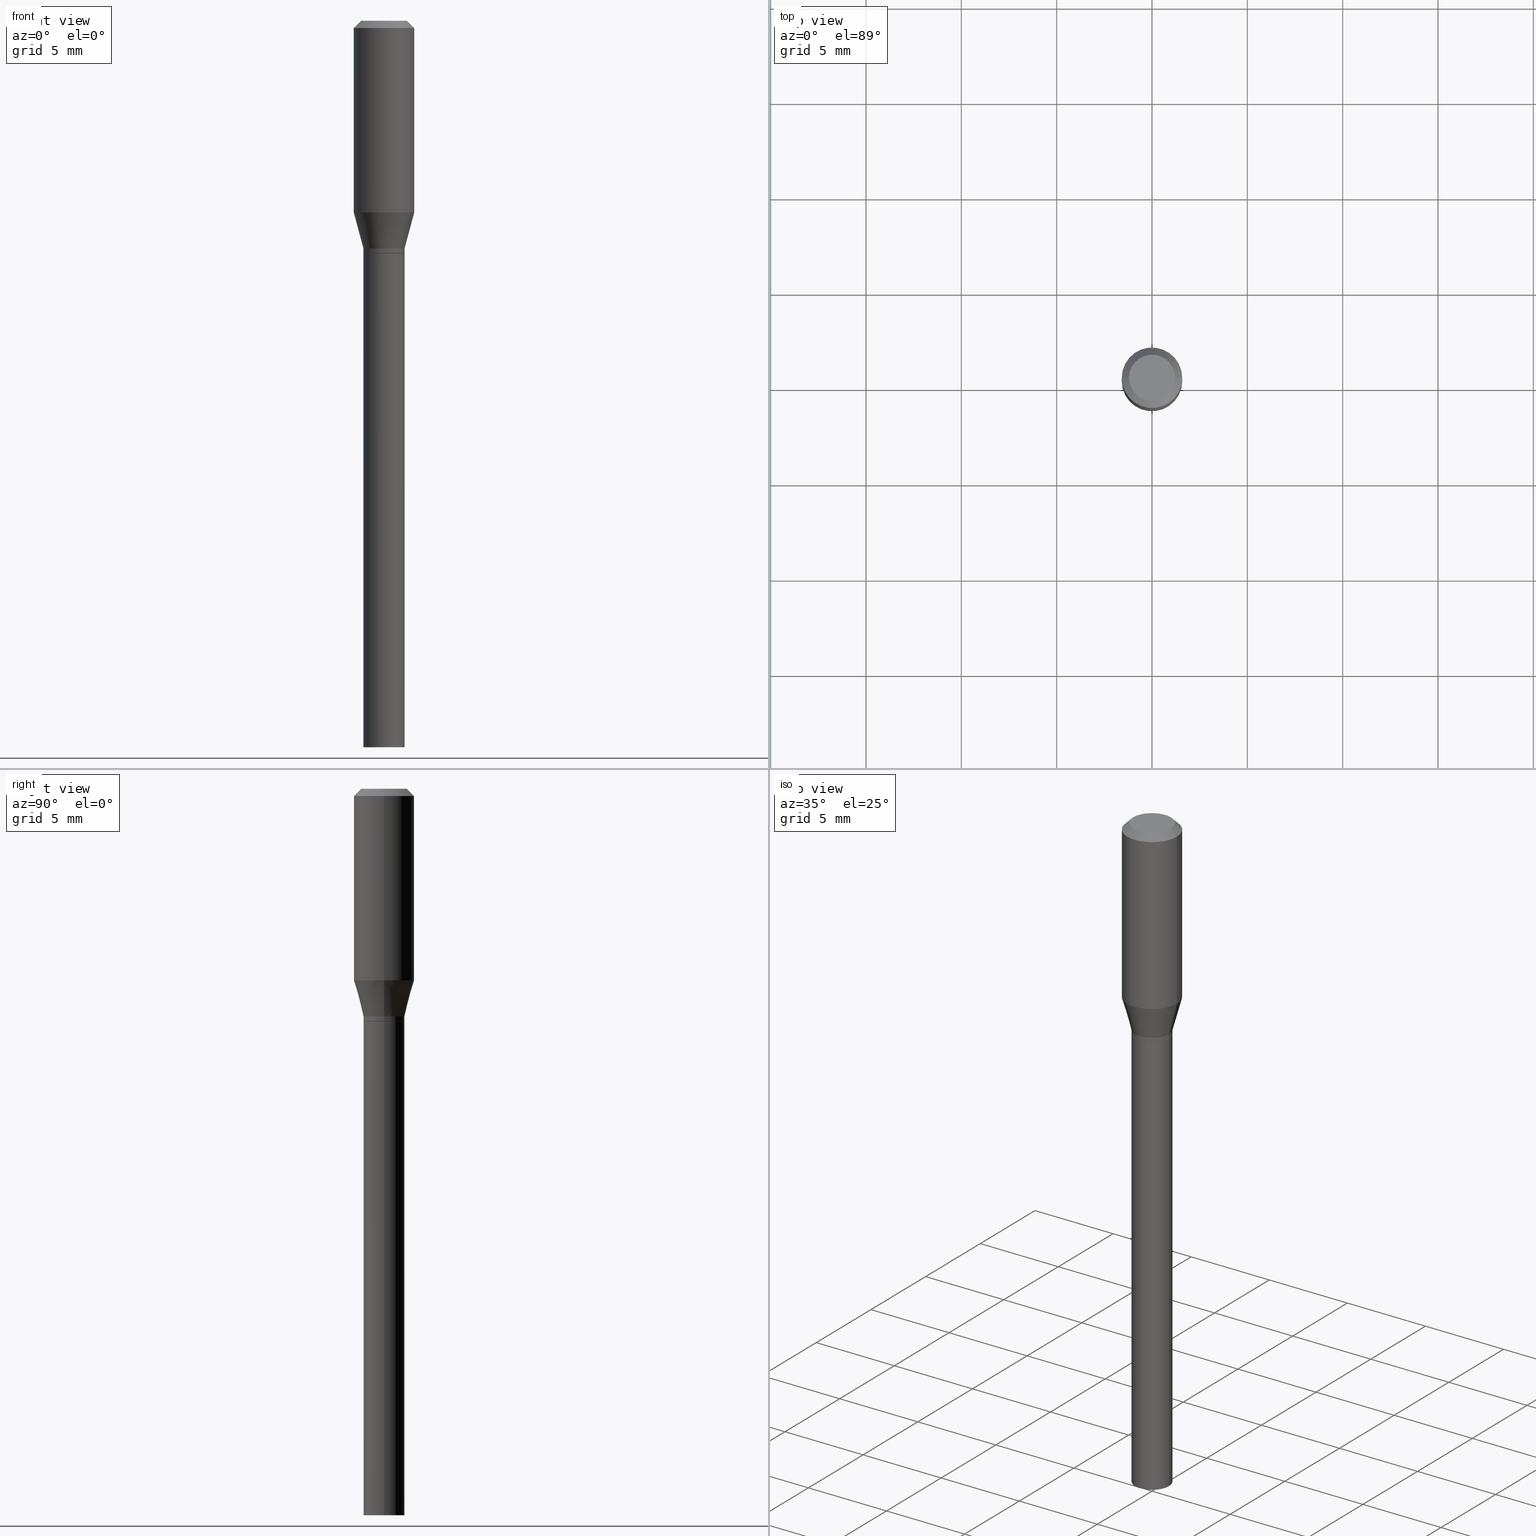
[diagram: canonical four-view strip — front | top / right | iso, engineering-drawing reading convention]
A machine part, canonical four-view strip (front | top / right | iso — engineering-drawing reading convention). The complete STEP part file that produces these views, byte-faithful:
ISO-10303-21;
HEADER;
FILE_DESCRIPTION (( 'STEP AP203' ),
    '1' );
FILE_NAME ('04257.STEP',
    '2024-03-14T17:33:07',
    ( '' ),
    ( '' ),
    'SwSTEP 2.0',
    'SolidWorks 2023',
    '' );
FILE_SCHEMA (( 'CONFIG_CONTROL_DESIGN' ));
ENDSEC;

DATA;
#1 = CARTESIAN_POINT ( 'NONE',  ( 0.000000000000000000, 0.000000000000000000, 0.000000000000000000 ) ) ;
#2 = LINE ( 'NONE', #190, #276 ) ;
#3 = CIRCLE ( 'NONE', #255, 0.04249999999999994060 ) ;
#4 = CIRCLE ( 'NONE', #32, 0.06250000000000000000 ) ;
#5 = DIRECTION ( 'NONE',  ( -2.445468806185136597E-29, 3.491481338843145583E-15, 1.000000000000000000 ) ) ;
#6 = EDGE_CURVE ( 'NONE', #379, #358, #69, .T. ) ;
#7 = UNCERTAINTY_MEASURE_WITH_UNIT (LENGTH_MEASURE( 1.000000000000000082E-05 ), #166, 'distance_accuracy_value', 'NONE');
#8 = CARTESIAN_POINT ( 'NONE',  ( 1.173825026968865768E-29, -1.675911042644710085E-15, -0.4800000000000000933 ) ) ;
#9 = DIRECTION ( 'NONE',  ( -2.445468806185136597E-29, 3.491481338843145583E-15, 1.000000000000000000 ) ) ;
#10 = CC_DESIGN_PERSON_AND_ORGANIZATION_ASSIGNMENT ( #291, #111, ( #148 ) ) ;
#11 = ORIENTED_EDGE ( 'NONE', *, *, #246, .F. ) ;
#12 = DIRECTION ( 'NONE',  ( -2.445468806185136597E-29, 3.491481338843145583E-15, 1.000000000000000000 ) ) ;
#13 = AXIS2_PLACEMENT_3D ( 'NONE', #243, #211, #423 ) ;
#14 = CARTESIAN_POINT ( 'NONE',  ( 3.576687321579069994E-29, -5.368277968210015545E-15, -1.500000000000000222 ) ) ;
#15 = DIRECTION ( 'NONE',  ( -2.445468806185136597E-29, 3.491481338843145583E-15, 1.000000000000000000 ) ) ;
#16 =( LENGTH_UNIT ( ) NAMED_UNIT ( * ) SI_UNIT ( $, .METRE. ) );
#17 = EDGE_CURVE ( 'NONE', #189, #72, #3, .T. ) ;
#18 = EDGE_LOOP ( 'NONE', ( #338, #293, #241, #162 ) ) ;
#19 = LENGTH_MEASURE_WITH_UNIT ( LENGTH_MEASURE( 0.02539999999999999897 ), #16 );
#20 = VECTOR ( 'NONE', #91, 39.37007874015748143 ) ;
#21 = CC_DESIGN_PERSON_AND_ORGANIZATION_ASSIGNMENT ( #102, #217, ( #121 ) ) ;
#22 = VERTEX_POINT ( 'NONE', #248 ) ;
#23 = LOCAL_TIME ( 13, 33, 6.000000000000000000, #68 ) ;
#24 = ADVANCED_FACE ( 'NONE', ( #66 ), #54, .T. ) ;
#25 =( NAMED_UNIT ( * ) PLANE_ANGLE_UNIT ( ) SI_UNIT ( $, .RADIAN. ) );
#26 = ORIENTED_EDGE ( 'NONE', *, *, #180, .F. ) ;
#27 = EDGE_CURVE ( 'NONE', #313, #452, #184, .T. ) ;
#28 = APPROVAL_ROLE ( '' ) ;
#29 = EDGE_LOOP ( 'NONE', ( #104, #218, #384, #64 ) ) ;
#30 = ORIENTED_EDGE ( 'NONE', *, *, #377, .F. ) ;
#31 = AXIS2_PLACEMENT_3D ( 'NONE', #438, #79, #265 ) ;
#32 = AXIS2_PLACEMENT_3D ( 'NONE', #444, #353, #175 ) ;
#33 = DIRECTION ( 'NONE',  ( 1.000000000000000000, -6.982962677686269866E-15, 0.000000000000000000 ) ) ;
#34 = ORIENTED_EDGE ( 'NONE', *, *, #145, .F. ) ;
#35 = CIRCLE ( 'NONE', #31, 0.04249999999999999611 ) ;
#36 = DIRECTION ( 'NONE',  ( 2.438088387897960049E-29, -3.491481338843145188E-15, -1.000000000000000000 ) ) ;
#37 = VERTEX_POINT ( 'NONE', #333 ) ;
#38 = DIRECTION ( 'NONE',  ( 1.000000000000000000, -6.982962677686265922E-15, 4.876176775795935793E-29 ) ) ;
#39 = FACE_OUTER_BOUND ( 'NONE', #324, .T. ) ;
#40 = ORIENTED_EDGE ( 'NONE', *, *, #229, .T. ) ;
#41 = CIRCLE ( 'NONE', #349, 0.04250000000000005856 ) ;
#42 = FACE_OUTER_BOUND ( 'NONE', #193, .T. ) ;
#43 = AXIS2_PLACEMENT_3D ( 'NONE', #140, #215, #108 ) ;
#44 = ADVANCED_FACE ( 'NONE', ( #305 ), #114, .T. ) ;
#45 = VECTOR ( 'NONE', #198, 39.37007874015748143 ) ;
#46 = CARTESIAN_POINT ( 'NONE',  ( 0.000000000000000000, 0.000000000000000000, 0.000000000000000000 ) ) ;
#47 = DIRECTION ( 'NONE',  ( 1.000000000000000000, -6.982962677686267499E-15, 4.876176775795935793E-29 ) ) ;
#48 = APPROVAL ( #247, 'UNSPECIFIED' ) ;
#49 = DIRECTION ( 'NONE',  ( -2.445468806185136597E-29, 3.491481338843145583E-15, 1.000000000000000000 ) ) ;
#50 = ORIENTED_EDGE ( 'NONE', *, *, #272, .F. ) ;
#51 = CARTESIAN_POINT ( 'NONE',  ( -0.04249999999999994060, -1.137657435479813503E-15, -0.4700000000000000289 ) ) ;
#52 = DIRECTION ( 'NONE',  ( 1.000000000000000000, -6.982962677686269077E-15, 0.000000000000000000 ) ) ;
#53 = CLOSED_SHELL ( 'NONE', ( #314, #24, #84, #261, #105, #96, #297, #328, #356, #187, #44, #181 ) ) ;
#54 = CONICAL_SURFACE ( 'NONE', #359, 0.04199999999999999567, 0.7853981633976103716 ) ;
#55 = FACE_OUTER_BOUND ( 'NONE', #253, .T. ) ;
#56 = CARTESIAN_POINT ( 'NONE',  ( -0.04249999999999999611, 3.019806626980425514E-16, -2.090547413358334859E-30 ) ) ;
#57 = EDGE_LOOP ( 'NONE', ( #34, #352, #173, #101 ) ) ;
#58 = LINE ( 'NONE', #56, #127 ) ;
#59 = EDGE_LOOP ( 'NONE', ( #138, #332, #275, #50 ) ) ;
#60 = LOCAL_TIME ( 13, 33, 6.000000000000000000, #139 ) ;
#61 = AXIS2_PLACEMENT_3D ( 'NONE', #159, #375, #52 ) ;
#62 = VERTEX_POINT ( 'NONE', #258 ) ;
#63 = VECTOR ( 'NONE', #116, 39.37007874015748143 ) ;
#64 = ORIENTED_EDGE ( 'NONE', *, *, #289, .F. ) ;
#65 = DIRECTION ( 'NONE',  ( 1.000000000000000000, -6.982962677686269866E-15, 0.000000000000000000 ) ) ;
#66 = FACE_OUTER_BOUND ( 'NONE', #381, .T. ) ;
#67 = ADVANCED_BREP_SHAPE_REPRESENTATION ( '04257', ( #286, #124, #292 ), #266 ) ;
#68 = COORDINATED_UNIVERSAL_TIME_OFFSET ( 5, 0, .BEHIND. ) ;
#69 = LINE ( 'NONE', #137, #150 ) ;
#70 = CC_DESIGN_APPROVAL ( #186, ( #121 ) ) ;
#71 = EDGE_CURVE ( 'NONE', #358, #177, #136, .T. ) ;
#72 = VERTEX_POINT ( 'NONE', #329 ) ;
#73 = PERSON_AND_ORGANIZATION ( #278, #465 ) ;
#74 = ADVANCED_FACE ( 'NONE', ( #301 ), #372, .T. ) ;
#75 = EDGE_CURVE ( 'NONE', #189, #316, #2, .T. ) ;
#76 = CLOSED_SHELL ( 'NONE', ( #74, #415, #325, #317 ) ) ;
#77 = DIRECTION ( 'NONE',  ( 1.000000000000000000, -6.982962677686265922E-15, 0.000000000000000000 ) ) ;
#78 = ORIENTED_EDGE ( 'NONE', *, *, #246, .T. ) ;
#79 = DIRECTION ( 'NONE',  ( -2.445468806185136597E-29, 3.491481338843145583E-15, 1.000000000000000000 ) ) ;
#80 = DIRECTION ( 'NONE',  ( 1.000000000000000000, -6.982962677686269866E-15, 0.000000000000000000 ) ) ;
#81 = CARTESIAN_POINT ( 'NONE',  ( 1.172602292565773247E-29, -1.674165301975288581E-15, -0.4795000000000000928 ) ) ;
#82 = AXIS2_PLACEMENT_3D ( 'NONE', #14, #161, #270 ) ;
#83 = FACE_OUTER_BOUND ( 'NONE', #95, .T. ) ;
#84 = ADVANCED_FACE ( 'NONE', ( #233 ), #369, .T. ) ;
#85 = VECTOR ( 'NONE', #256, 39.37007874015748143 ) ;
#86 = EDGE_CURVE ( 'NONE', #316, #260, #236, .T. ) ;
#87 = CONICAL_SURFACE ( 'NONE', #290, 0.06250000000000000000, 0.7853981633974450594 ) ;
#88 = CARTESIAN_POINT ( 'NONE',  ( 3.668203209277705088E-31, -5.237222008264718399E-17, -0.01499999999999999944 ) ) ;
#89 = CARTESIAN_POINT ( 'NONE',  ( 9.668380622468593325E-30, -1.380388514251453836E-15, -0.3953589838486224473 ) ) ;
#90 = DIRECTION ( 'NONE',  ( 1.000000000000000000, -6.982962677686269077E-15, 0.000000000000000000 ) ) ;
#91 = DIRECTION ( 'NONE',  ( 0.7071067811866621478, -2.468850131083457312E-15, 0.7071067811864328867 ) ) ;
#92 = FACE_OUTER_BOUND ( 'NONE', #210, .T. ) ;
#93 = LINE ( 'NONE', #235, #408 ) ;
#94 = PLANE ( 'NONE',  #82 ) ;
#95 = EDGE_LOOP ( 'NONE', ( #395, #288 ) ) ;
#96 = ADVANCED_FACE ( 'NONE', ( #339 ), #304, .T. ) ;
#97 = DIRECTION ( 'NONE',  ( -2.445468806185136597E-29, 3.491481338843145583E-15, 1.000000000000000000 ) ) ;
#98 = EDGE_CURVE ( 'NONE', #452, #62, #296, .T. ) ;
#99 = DIRECTION ( 'NONE',  ( 0.000000000000000000, 0.000000000000000000, 1.000000000000000000 ) ) ;
#100 = CIRCLE ( 'NONE', #363, 0.04199999999999999567 ) ;
#101 = ORIENTED_EDGE ( 'NONE', *, *, #152, .F. ) ;
#102 = PERSON_AND_ORGANIZATION ( #278, #465 ) ;
#103 = EDGE_LOOP ( 'NONE', ( #458, #155, #117, #429 ) ) ;
#104 = ORIENTED_EDGE ( 'NONE', *, *, #311, .T. ) ;
#105 = ADVANCED_FACE ( 'NONE', ( #42 ), #295, .T. ) ;
#106 = LOCAL_TIME ( 13, 33, 6.000000000000000000, #319 ) ;
#107 = PERSON_AND_ORGANIZATION ( #278, #465 ) ;
#108 = DIRECTION ( 'NONE',  ( 1.000000000000000000, -6.982962677686267499E-15, 4.884662768193073002E-29 ) ) ;
#109 = AXIS2_PLACEMENT_3D ( 'NONE', #413, #442, #80 ) ;
#110 = AXIS2_PLACEMENT_3D ( 'NONE', #434, #257, #192 ) ;
#111 = PERSON_AND_ORGANIZATION_ROLE ( 'creator' ) ;
#112 = LINE ( 'NONE', #113, #63 ) ;
#113 = CARTESIAN_POINT ( 'NONE',  ( 0.04249999999999999611, -2.967759138016663549E-16, 2.072375129713272502E-30 ) ) ;
#114 = CONICAL_SURFACE ( 'NONE', #109, 0.04199999999999999567, 0.7853981633976103716 ) ;
#115 = LINE ( 'NONE', #440, #85 ) ;
#116 = DIRECTION ( 'NONE',  ( -2.445468806185136877E-29, 3.491481338843145188E-15, 1.000000000000000000 ) ) ;
#117 = ORIENTED_EDGE ( 'NONE', *, *, #152, .T. ) ;
#118 = CARTESIAN_POINT ( 'NONE',  ( 0.000000000000000000, 0.000000000000000000, 0.000000000000000000 ) ) ;
#119 = CYLINDRICAL_SURFACE ( 'NONE', #464, 0.04249999999999999611 ) ;
#120 = DIRECTION ( 'NONE',  ( -1.000000000000000000, 6.982962677686265922E-15, -4.876176775795935793E-29 ) ) ;
#121 = SECURITY_CLASSIFICATION ( '', '', #433 ) ;
#122 = CARTESIAN_POINT ( 'NONE',  ( 0.04249999999999999611, -1.972686956446376341E-15, -0.4800000000000000933 ) ) ;
#123 = DIRECTION ( 'NONE',  ( 1.000000000000000000, -6.982962677686265133E-15, 0.000000000000000000 ) ) ;
#124 = MANIFOLD_SOLID_BREP ( 'Body-Move/Copy2[2]', #53 ) ;
#125 = DIRECTION ( 'NONE',  ( 1.000000000000000000, -6.982962677686265922E-15, 0.000000000000000000 ) ) ;
#126 = ORIENTED_EDGE ( 'NONE', *, *, #311, .F. ) ;
#127 = VECTOR ( 'NONE', #234, 39.37007874015748143 ) ;
#128 = EDGE_CURVE ( 'NONE', #72, #189, #250, .T. ) ;
#129 = AXIS2_PLACEMENT_3D ( 'NONE', #232, #373, #38 ) ;
#130 = AXIS2_PLACEMENT_3D ( 'NONE', #416, #306, #343 ) ;
#131 = CARTESIAN_POINT ( 'NONE',  ( -0.04249999999999999611, -3.154585862756671481E-15, -0.4800000000000000933 ) ) ;
#132 = ORIENTED_EDGE ( 'NONE', *, *, #71, .F. ) ;
#133 = CARTESIAN_POINT ( 'NONE',  ( 1.173825026968865628E-29, -1.675911042644709888E-15, -0.4799999999999999822 ) ) ;
#134 = MECHANICAL_CONTEXT ( 'NONE', #154, 'mechanical' ) ;
#135 = PERSON_AND_ORGANIZATION ( #278, #465 ) ;
#136 = CIRCLE ( 'NONE', #264, 0.04249999999999999611 ) ;
#137 = CARTESIAN_POINT ( 'NONE',  ( -0.04249999999999999611, 3.019806626980425514E-16, -2.090547413358334859E-30 ) ) ;
#138 = ORIENTED_EDGE ( 'NONE', *, *, #422, .T. ) ;
#139 = COORDINATED_UNIVERSAL_TIME_OFFSET ( 5, 0, .BEHIND. ) ;
#140 = CARTESIAN_POINT ( 'NONE',  ( -2.427605901612193195E-45, 3.465977845273231710E-31, 9.926955091278351202E-17 ) ) ;
#141 = AXIS2_PLACEMENT_3D ( 'NONE', #46, #49, #337 ) ;
#142 = CALENDAR_DATE ( 2024, 14, 3 ) ;
#143 = ORIENTED_EDGE ( 'NONE', *, *, #449, .T. ) ;
#144 = AXIS2_PLACEMENT_3D ( 'NONE', #133, #97, #344 ) ;
#145 = EDGE_CURVE ( 'NONE', #452, #313, #170, .T. ) ;
#146 = AXIS2_PLACEMENT_3D ( 'NONE', #312, #237, #380 ) ;
#147 = PERSON_AND_ORGANIZATION ( #278, #465 ) ;
#148 = PRODUCT_DEFINITION ( 'UNKNOWN', '', #231, #199 ) ;
#149 = CARTESIAN_POINT ( 'NONE',  ( 3.316907271900976096E-16, 0.04749999999999999362, -1.162105881386576343E-16 ) ) ;
#150 = VECTOR ( 'NONE', #360, 39.37007874015748143 ) ;
#151 = DIRECTION ( 'NONE',  ( -2.445468806185136597E-29, 3.491481338843145583E-15, 1.000000000000000000 ) ) ;
#152 = EDGE_CURVE ( 'NONE', #313, #462, #115, .T. ) ;
#153 = DIRECTION ( 'NONE',  ( 1.000000000000000000, -6.982962677686267499E-15, 4.884662768193073002E-29 ) ) ;
#154 = APPLICATION_CONTEXT ( 'configuration controlled 3d designs of mechanical parts and assemblies' ) ;
#155 = ORIENTED_EDGE ( 'NONE', *, *, #27, .F. ) ;
#156 = CARTESIAN_POINT ( 'NONE',  ( 0.06250000000000000000, -4.811533449433679005E-16, -0.01499999999999999944 ) ) ;
#157 = DIRECTION ( 'NONE',  ( 0.2588190451025212391, 1.565188264969622362E-15, 0.9659258262890679791 ) ) ;
#158 = EDGE_LOOP ( 'NONE', ( #345, #320, #78, #223 ) ) ;
#159 = CARTESIAN_POINT ( 'NONE',  ( 1.149370338907014223E-29, -1.640996229256278436E-15, -0.4700000000000000289 ) ) ;
#160 = AXIS2_PLACEMENT_3D ( 'NONE', #268, #336, #90 ) ;
#161 = DIRECTION ( 'NONE',  ( -2.438088387897960049E-29, 3.491481338843145188E-15, 1.000000000000000000 ) ) ;
#162 = ORIENTED_EDGE ( 'NONE', *, *, #86, .F. ) ;
#163 = DIRECTION ( 'NONE',  ( 0.7071067811865452413, -7.319954787623248157E-15, -0.7071067811865497932 ) ) ;
#164 = DIRECTION ( 'NONE',  ( -1.000000000000000000, 6.982962677686265922E-15, -4.876176775795935793E-29 ) ) ;
#165 = ORIENTED_EDGE ( 'NONE', *, *, #180, .T. ) ;
#166 =( CONVERSION_BASED_UNIT ( 'INCH', #19 ) LENGTH_UNIT ( ) NAMED_UNIT ( #330 ) );
#167 = VERTEX_POINT ( 'NONE', #401 ) ;
#168 = APPROVAL_PERSON_ORGANIZATION ( #147, #48, #459 ) ;
#169 = PRODUCT ( '04257', '04257', '', ( #134 ) ) ;
#170 = CIRCLE ( 'NONE', #432, 0.04749999999999999362 ) ;
#171 = CIRCLE ( 'NONE', #191, 0.04249999999999999611 ) ;
#172 = CARTESIAN_POINT ( 'NONE',  ( 3.668203209277704895E-29, -5.237222008264718177E-15, -1.500000000000000222 ) ) ;
#173 = ORIENTED_EDGE ( 'NONE', *, *, #447, .T. ) ;
#174 = CARTESIAN_POINT ( 'NONE',  ( 0.000000000000000000, 0.000000000000000000, 0.000000000000000000 ) ) ;
#175 = DIRECTION ( 'NONE',  ( 1.000000000000000000, -6.982962677686266711E-15, 0.000000000000000000 ) ) ;
#176 = DATE_AND_TIME ( #461, #106 ) ;
#177 = VERTEX_POINT ( 'NONE', #122 ) ;
#178 = DATE_AND_TIME ( #142, #310 ) ;
#179 = ORIENTED_EDGE ( 'NONE', *, *, #75, .T. ) ;
#180 = EDGE_CURVE ( 'NONE', #379, #167, #35, .T. ) ;
#181 = ADVANCED_FACE ( 'NONE', ( #410 ), #119, .T. ) ;
#182 = CALENDAR_DATE ( 2024, 14, 3 ) ;
#183 = VERTEX_POINT ( 'NONE', #406 ) ;
#184 = CIRCLE ( 'NONE', #43, 0.04749999999999999362 ) ;
#185 = CARTESIAN_POINT ( 'NONE',  ( -0.04749999999999999362, 3.578768372314212971E-16, 9.926955091278110846E-17 ) ) ;
#186 = APPROVAL ( #209, 'UNSPECIFIED' ) ;
#187 = ADVANCED_FACE ( 'NONE', ( #83 ), #230, .F. ) ;
#188 = CARTESIAN_POINT ( 'NONE',  ( 1.173825026968865628E-29, -1.675911042644709888E-15, -0.4799999999999999822 ) ) ;
#189 = VERTEX_POINT ( 'NONE', #51 ) ;
#190 = CARTESIAN_POINT ( 'NONE',  ( -0.04249999999999994060, -1.339015566558236180E-15, -0.4700000000000000289 ) ) ;
#191 = AXIS2_PLACEMENT_3D ( 'NONE', #172, #376, #279 ) ;
#192 = DIRECTION ( 'NONE',  ( 1.000000000000000000, -6.982962677686266711E-15, 4.876176775795935793E-29 ) ) ;
#193 = EDGE_LOOP ( 'NONE', ( #420, #179, #207, #456 ) ) ;
#194 = CARTESIAN_POINT ( 'NONE',  ( 3.668203209277705088E-31, -5.237222008264718399E-17, -0.01499999999999999944 ) ) ;
#195 = FACE_OUTER_BOUND ( 'NONE', #103, .T. ) ;
#196 = VERTEX_POINT ( 'NONE', #197 ) ;
#197 = CARTESIAN_POINT ( 'NONE',  ( -0.04199999999999999567, -1.374833866451356541E-15, -0.4799999999999999822 ) ) ;
#198 = DIRECTION ( 'NONE',  ( -2.445468806185136877E-29, 3.491481338843145188E-15, 1.000000000000000000 ) ) ;
#199 = DESIGN_CONTEXT ( 'detailed design', #216, 'design' ) ;
#200 = DIRECTION ( 'NONE',  ( 1.000000000000000000, -6.982962677686269077E-15, 0.000000000000000000 ) ) ;
#201 = AXIS2_PLACEMENT_3D ( 'NONE', #89, #5, #403 ) ;
#202 = ORIENTED_EDGE ( 'NONE', *, *, #289, .T. ) ;
#203 = DIRECTION ( 'NONE',  ( -2.445468806185136597E-29, 3.491481338843145583E-15, 1.000000000000000000 ) ) ;
#204 = ORIENTED_EDGE ( 'NONE', *, *, #27, .T. ) ;
#205 = EDGE_LOOP ( 'NONE', ( #388, #40, #362, #238 ) ) ;
#206 = AXIS2_PLACEMENT_3D ( 'NONE', #149, #36, #164 ) ;
#207 = ORIENTED_EDGE ( 'NONE', *, *, #396, .F. ) ;
#208 = DIRECTION ( 'NONE',  ( -2.445468806185136877E-29, 3.491481338843145188E-15, 1.000000000000000000 ) ) ;
#209 = APPROVAL_STATUS ( 'not_yet_approved' ) ;
#210 = EDGE_LOOP ( 'NONE', ( #364, #26 ) ) ;
#211 = DIRECTION ( 'NONE',  ( -2.445468806185136597E-29, 3.491481338843145583E-15, 1.000000000000000000 ) ) ;
#212 = CARTESIAN_POINT ( 'NONE',  ( 1.173825026968865628E-29, -1.675911042644709888E-15, -0.4799999999999999822 ) ) ;
#213 = COORDINATED_UNIVERSAL_TIME_OFFSET ( 5, 0, .BEHIND. ) ;
#214 = VECTOR ( 'NONE', #443, 39.37007874015748143 ) ;
#215 = DIRECTION ( 'NONE',  ( -2.445468806185136597E-29, 3.491481338843145583E-15, 1.000000000000000000 ) ) ;
#216 = APPLICATION_CONTEXT ( 'configuration controlled 3d designs of mechanical parts and assemblies' ) ;
#217 = PERSON_AND_ORGANIZATION_ROLE ( 'classification_officer' ) ;
#218 = ORIENTED_EDGE ( 'NONE', *, *, #454, .T. ) ;
#219 = APPROVAL_DATE_TIME ( #428, #220 ) ;
#220 = APPROVAL ( #457, 'UNSPECIFIED' ) ;
#221 = VECTOR ( 'NONE', #208, 39.37007874015748143 ) ;
#222 = FACE_OUTER_BOUND ( 'NONE', #348, .T. ) ;
#223 = ORIENTED_EDGE ( 'NONE', *, *, #273, .F. ) ;
#224 = CARTESIAN_POINT ( 'NONE',  ( 0.000000000000000000, 0.000000000000000000, 0.000000000000000000 ) ) ;
#225 = FACE_OUTER_BOUND ( 'NONE', #29, .T. ) ;
#226 = DIRECTION ( 'NONE',  ( -0.2588190451025212391, 5.211531920934549464E-15, 0.9659258262890679791 ) ) ;
#227 = PRODUCT_RELATED_PRODUCT_CATEGORY ( 'detail', '', ( #169 ) ) ;
#228 = LINE ( 'NONE', #412, #431 ) ;
#229 = EDGE_CURVE ( 'NONE', #196, #183, #100, .T. ) ;
#230 = PLANE ( 'NONE',  #129 ) ;
#231 = PRODUCT_DEFINITION_FORMATION_WITH_SPECIFIED_SOURCE ( 'ANY', '', #169, .NOT_KNOWN. ) ;
#232 = CARTESIAN_POINT ( 'NONE',  ( 1.173825026968865768E-29, -1.675911042644710085E-15, -0.4800000000000000933 ) ) ;
#233 = FACE_OUTER_BOUND ( 'NONE', #57, .T. ) ;
#234 = DIRECTION ( 'NONE',  ( -2.445468806185136877E-29, 3.491481338843145188E-15, 1.000000000000000000 ) ) ;
#235 = CARTESIAN_POINT ( 'NONE',  ( 0.06250000000000000000, -4.364351673553916694E-16, 3.047610484872459871E-30 ) ) ;
#236 = CIRCLE ( 'NONE', #201, 0.06250000000000000000 ) ;
#237 = DIRECTION ( 'NONE',  ( -2.445468806185136597E-29, 3.491481338843145583E-15, 1.000000000000000000 ) ) ;
#238 = ORIENTED_EDGE ( 'NONE', *, *, #411, .F. ) ;
#239 = EDGE_CURVE ( 'NONE', #183, #196, #424, .T. ) ;
#240 = CARTESIAN_POINT ( 'NONE',  ( -0.06250000000000000000, 4.440892098500626162E-16, -3.074334431409316114E-30 ) ) ;
#241 = ORIENTED_EDGE ( 'NONE', *, *, #340, .T. ) ;
#242 = ORIENTED_EDGE ( 'NONE', *, *, #430, .T. ) ;
#243 = CARTESIAN_POINT ( 'NONE',  ( 0.000000000000000000, 0.000000000000000000, 0.000000000000000000 ) ) ;
#244 = SHAPE_DEFINITION_REPRESENTATION ( #269, #67 ) ;
#245 = DIRECTION ( 'NONE',  ( 1.000000000000000000, -6.982962677686269077E-15, 0.000000000000000000 ) ) ;
#246 = EDGE_CURVE ( 'NONE', #260, #62, #93, .T. ) ;
#247 = APPROVAL_STATUS ( 'not_yet_approved' ) ;
#248 = CARTESIAN_POINT ( 'NONE',  ( 0.04250000000000005856, -1.970941215776955626E-15, -0.4795000000000000928 ) ) ;
#249 = APPROVAL_PERSON_ORGANIZATION ( #135, #220, #321 ) ;
#250 = CIRCLE ( 'NONE', #160, 0.04249999999999994060 ) ;
#251 = CALENDAR_DATE ( 2024, 14, 3 ) ;
#252 = AXIS2_PLACEMENT_3D ( 'NONE', #1, #9, #259 ) ;
#253 = EDGE_LOOP ( 'NONE', ( #308, #242, #322, #11 ) ) ;
#254 = PERSON_AND_ORGANIZATION_ROLE ( 'design_owner' ) ;
#255 = AXIS2_PLACEMENT_3D ( 'NONE', #284, #426, #245 ) ;
#256 = DIRECTION ( 'NONE',  ( -0.7071067811865452413, 2.468850131082233000E-15, -0.7071067811865497932 ) ) ;
#257 = DIRECTION ( 'NONE',  ( -2.445468806185136597E-29, 3.491481338843145583E-15, 1.000000000000000000 ) ) ;
#258 = CARTESIAN_POINT ( 'NONE',  ( 0.06250000000000000000, -4.888073874380388472E-16, -0.01499999999999999944 ) ) ;
#259 = DIRECTION ( 'NONE',  ( 1.000000000000000000, -6.982962677686267499E-15, 4.876176775795935793E-29 ) ) ;
#260 = VERTEX_POINT ( 'NONE', #382 ) ;
#261 = ADVANCED_FACE ( 'NONE', ( #55 ), #446, .T. ) ;
#262 = DIRECTION ( 'NONE',  ( -2.445468806185136597E-29, 3.491481338843145583E-15, 1.000000000000000000 ) ) ;
#263 = DIRECTION ( 'NONE',  ( -1.000000000000000000, 6.982962677686266711E-15, 0.000000000000000000 ) ) ;
#264 = AXIS2_PLACEMENT_3D ( 'NONE', #8, #437, #123 ) ;
#265 = DIRECTION ( 'NONE',  ( 1.000000000000000000, -6.982962677686276177E-15, 0.000000000000000000 ) ) ;
#266 =( GEOMETRIC_REPRESENTATION_CONTEXT ( 3 ) GLOBAL_UNCERTAINTY_ASSIGNED_CONTEXT ( ( #7 ) ) GLOBAL_UNIT_ASSIGNED_CONTEXT ( ( #166, #25, #347 ) ) REPRESENTATION_CONTEXT ( 'NONE', 'WORKASPACE' ) );
#267 = CYLINDRICAL_SURFACE ( 'NONE', #252, 0.04249999999999999611 ) ;
#268 = CARTESIAN_POINT ( 'NONE',  ( 1.149370338907014223E-29, -1.640996229256278436E-15, -0.4700000000000000289 ) ) ;
#269 = PRODUCT_DEFINITION_SHAPE ( 'NONE', 'NONE',  #148 ) ;
#270 = DIRECTION ( 'NONE',  ( 1.000000000000000000, -6.982962677686265922E-15, 4.876176775795935793E-29 ) ) ;
#271 = ORIENTED_EDGE ( 'NONE', *, *, #272, .T. ) ;
#272 = EDGE_CURVE ( 'NONE', #167, #177, #386, .T. ) ;
#273 = EDGE_CURVE ( 'NONE', #462, #62, #4, .T. ) ;
#274 = LINE ( 'NONE', #414, #20 ) ;
#275 = ORIENTED_EDGE ( 'NONE', *, *, #449, .F. ) ;
#276 = VECTOR ( 'NONE', #226, 39.37007874015748854 ) ;
#277 = CARTESIAN_POINT ( 'NONE',  ( 1.172602292565773247E-29, -1.674165301975288581E-15, -0.4795000000000000928 ) ) ;
#278 = PERSON ( 'UNSPECIFIED', 'UNSPECIFIED', 'UNSPECIFIED', ('UNSPECIFIED'), ('UNSPECIFIED'), ('UNSPECIFIED') ) ;
#279 = DIRECTION ( 'NONE',  ( 1.000000000000000000, -6.982962677686276177E-15, 0.000000000000000000 ) ) ;
#280 = ORIENTED_EDGE ( 'NONE', *, *, #17, .F. ) ;
#281 = CARTESIAN_POINT ( 'NONE',  ( -0.06250000000000000000, -2.722911573169879398E-16, -0.01499999999999999944 ) ) ;
#282 = ORIENTED_EDGE ( 'NONE', *, *, #390, .T. ) ;
#283 = CALENDAR_DATE ( 2024, 14, 3 ) ;
#284 = CARTESIAN_POINT ( 'NONE',  ( 1.149370338907014223E-29, -1.640996229256278436E-15, -0.4700000000000000289 ) ) ;
#285 = ORIENTED_EDGE ( 'NONE', *, *, #411, .T. ) ;
#286 = MANIFOLD_SOLID_BREP ( 'Body-Move/Copy2[1]', #76 ) ;
#287 = PERSON_AND_ORGANIZATION ( #278, #465 ) ;
#288 = ORIENTED_EDGE ( 'NONE', *, *, #229, .F. ) ;
#289 = EDGE_CURVE ( 'NONE', #22, #72, #112, .T. ) ;
#290 = AXIS2_PLACEMENT_3D ( 'NONE', #88, #404, #263 ) ;
#291 = PERSON_AND_ORGANIZATION ( #278, #465 ) ;
#292 = AXIS2_PLACEMENT_3D ( 'NONE', #174, #99, #315 ) ;
#293 = ORIENTED_EDGE ( 'NONE', *, *, #17, .T. ) ;
#294 = PERSON_AND_ORGANIZATION_ROLE ( 'design_supplier' ) ;
#295 = CONICAL_SURFACE ( 'NONE', #331, 0.04249999999999994060, 0.2617993877991499629 ) ;
#296 = LINE ( 'NONE', #156, #417 ) ;
#297 = ADVANCED_FACE ( 'NONE', ( #374 ), #334, .T. ) ;
#298 = DIRECTION ( 'NONE',  ( 2.445468806185136597E-29, -3.491481338843145583E-15, -1.000000000000000000 ) ) ;
#299 = CARTESIAN_POINT ( 'NONE',  ( -0.06250000000000000000, -9.362993044013910222E-16, -0.3953589838486224473 ) ) ;
#300 = CC_DESIGN_PERSON_AND_ORGANIZATION_ASSIGNMENT ( #73, #254, ( #169 ) ) ;
#301 = FACE_OUTER_BOUND ( 'NONE', #59, .T. ) ;
#302 = PLANE ( 'NONE',  #206 ) ;
#303 = ORIENTED_EDGE ( 'NONE', *, *, #71, .T. ) ;
#304 = CONICAL_SURFACE ( 'NONE', #61, 0.04249999999999994060, 0.2617993877991499629 ) ;
#305 = FACE_OUTER_BOUND ( 'NONE', #205, .T. ) ;
#306 = DIRECTION ( 'NONE',  ( -2.445468806185136597E-29, 3.491481338843145583E-15, 1.000000000000000000 ) ) ;
#307 = CARTESIAN_POINT ( 'NONE',  ( 1.149370338907014223E-29, -1.640996229256278436E-15, -0.4700000000000000289 ) ) ;
#308 = ORIENTED_EDGE ( 'NONE', *, *, #396, .T. ) ;
#309 = CIRCLE ( 'NONE', #385, 0.04250000000000005856 ) ;
#310 = LOCAL_TIME ( 13, 33, 6.000000000000000000, #213 ) ;
#311 = EDGE_CURVE ( 'NONE', #22, #37, #41, .T. ) ;
#312 = CARTESIAN_POINT ( 'NONE',  ( 1.173825026968865768E-29, -1.675911042644710085E-15, -0.4800000000000000933 ) ) ;
#313 = VERTEX_POINT ( 'NONE', #185 ) ;
#314 = ADVANCED_FACE ( 'NONE', ( #225 ), #436, .T. ) ;
#315 = DIRECTION ( 'NONE',  ( 1.000000000000000000, 0.000000000000000000, 0.000000000000000000 ) ) ;
#316 = VERTEX_POINT ( 'NONE', #299 ) ;
#317 = ADVANCED_FACE ( 'NONE', ( #402 ), #439, .F. ) ;
#318 = APPROVAL_DATE_TIME ( #176, #186 ) ;
#319 = COORDINATED_UNIVERSAL_TIME_OFFSET ( 5, 0, .BEHIND. ) ;
#320 = ORIENTED_EDGE ( 'NONE', *, *, #86, .T. ) ;
#321 = APPROVAL_ROLE ( '' ) ;
#322 = ORIENTED_EDGE ( 'NONE', *, *, #447, .F. ) ;
#323 = DATE_AND_TIME ( #182, #350 ) ;
#324 = EDGE_LOOP ( 'NONE', ( #427, #165, #271, #132 ) ) ;
#325 = ADVANCED_FACE ( 'NONE', ( #39 ), #267, .T. ) ;
#326 = APPLICATION_PROTOCOL_DEFINITION ( 'international standard', 'config_control_design', 1994, #216 ) ;
#327 = CIRCLE ( 'NONE', #146, 0.04249999999999999611 ) ;
#328 = ADVANCED_FACE ( 'NONE', ( #195 ), #87, .T. ) ;
#329 = CARTESIAN_POINT ( 'NONE',  ( 0.04249999999999994060, -1.937772143057944692E-15, -0.4700000000000000289 ) ) ;
#330 = DIMENSIONAL_EXPONENTS ( 1.000000000000000000, 0.000000000000000000, 0.000000000000000000, 0.000000000000000000, 0.000000000000000000, 0.000000000000000000, 0.000000000000000000 ) ;
#331 = AXIS2_PLACEMENT_3D ( 'NONE', #307, #12, #200 ) ;
#332 = ORIENTED_EDGE ( 'NONE', *, *, #6, .T. ) ;
#333 = CARTESIAN_POINT ( 'NONE',  ( -0.04250000000000005856, -1.372184639277245734E-15, -0.4795000000000000928 ) ) ;
#334 = CYLINDRICAL_SURFACE ( 'NONE', #110, 0.06250000000000000000 ) ;
#335 = EDGE_LOOP ( 'NONE', ( #391, #285, #202, #280 ) ) ;
#336 = DIRECTION ( 'NONE',  ( -2.445468806185136597E-29, 3.491481338843145583E-15, 1.000000000000000000 ) ) ;
#337 = DIRECTION ( 'NONE',  ( 1.000000000000000000, -6.982962677686267499E-15, 4.876176775795935793E-29 ) ) ;
#338 = ORIENTED_EDGE ( 'NONE', *, *, #75, .F. ) ;
#339 = FACE_OUTER_BOUND ( 'NONE', #18, .T. ) ;
#340 = EDGE_CURVE ( 'NONE', #72, #260, #228, .T. ) ;
#341 = LINE ( 'NONE', #419, #214 ) ;
#342 = CARTESIAN_POINT ( 'NONE',  ( -2.427605901612193195E-45, 3.465977845273231710E-31, 9.926955091278351202E-17 ) ) ;
#343 = DIRECTION ( 'NONE',  ( 1.000000000000000000, -6.982962677686266711E-15, 0.000000000000000000 ) ) ;
#344 = DIRECTION ( 'NONE',  ( 1.000000000000000000, -6.982962677686269866E-15, 0.000000000000000000 ) ) ;
#345 = ORIENTED_EDGE ( 'NONE', *, *, #430, .F. ) ;
#346 = DIRECTION ( 'NONE',  ( -2.445468806185136877E-29, 3.491481338843145188E-15, 1.000000000000000000 ) ) ;
#347 =( NAMED_UNIT ( * ) SI_UNIT ( $, .STERADIAN. ) SOLID_ANGLE_UNIT ( ) );
#348 = EDGE_LOOP ( 'NONE', ( #204, #405 ) ) ;
#349 = AXIS2_PLACEMENT_3D ( 'NONE', #81, #371, #77 ) ;
#350 = LOCAL_TIME ( 13, 33, 6.000000000000000000, #361 ) ;
#351 = APPLICATION_PROTOCOL_DEFINITION ( 'international standard', 'config_control_design', 1994, #154 ) ;
#352 = ORIENTED_EDGE ( 'NONE', *, *, #98, .T. ) ;
#353 = DIRECTION ( 'NONE',  ( -2.445468806185136597E-29, 3.491481338843145583E-15, 1.000000000000000000 ) ) ;
#354 = PERSON_AND_ORGANIZATION_ROLE ( 'creator' ) ;
#355 = CARTESIAN_POINT ( 'NONE',  ( 0.04249999999999999611, -2.967759138016663549E-16, 2.072375129713272502E-30 ) ) ;
#356 = ADVANCED_FACE ( 'NONE', ( #222 ), #302, .F. ) ;
#357 = DATE_TIME_ROLE ( 'classification_date' ) ;
#358 = VERTEX_POINT ( 'NONE', #131 ) ;
#359 = AXIS2_PLACEMENT_3D ( 'NONE', #212, #393, #33 ) ;
#360 = DIRECTION ( 'NONE',  ( -2.445468806185136877E-29, 3.491481338843145188E-15, 1.000000000000000000 ) ) ;
#361 = COORDINATED_UNIVERSAL_TIME_OFFSET ( 5, 0, .BEHIND. ) ;
#362 = ORIENTED_EDGE ( 'NONE', *, *, #377, .T. ) ;
#363 = AXIS2_PLACEMENT_3D ( 'NONE', #188, #389, #65 ) ;
#364 = ORIENTED_EDGE ( 'NONE', *, *, #422, .F. ) ;
#365 = DIRECTION ( 'NONE',  ( 1.000000000000000000, -6.982962677686267499E-15, 4.876176775795935793E-29 ) ) ;
#366 = DIRECTION ( 'NONE',  ( 2.438088387897960049E-29, -3.491481338843145188E-15, -1.000000000000000000 ) ) ;
#367 = DIRECTION ( 'NONE',  ( -1.000000000000000000, 6.982962677686266711E-15, 0.000000000000000000 ) ) ;
#368 = CC_DESIGN_SECURITY_CLASSIFICATION ( #121, ( #231 ) ) ;
#369 = CONICAL_SURFACE ( 'NONE', #435, 0.06250000000000000000, 0.7853981633974450594 ) ;
#370 = AXIS2_PLACEMENT_3D ( 'NONE', #400, #366, #120 ) ;
#371 = DIRECTION ( 'NONE',  ( -2.445468806185136597E-29, 3.491481338843145583E-15, 1.000000000000000000 ) ) ;
#372 = CYLINDRICAL_SURFACE ( 'NONE', #399, 0.04249999999999999611 ) ;
#373 = DIRECTION ( 'NONE',  ( -2.438088387897960049E-29, 3.491481338843145188E-15, 1.000000000000000000 ) ) ;
#374 = FACE_OUTER_BOUND ( 'NONE', #158, .T. ) ;
#375 = DIRECTION ( 'NONE',  ( -2.445468806185136597E-29, 3.491481338843145583E-15, 1.000000000000000000 ) ) ;
#376 = DIRECTION ( 'NONE',  ( -2.445468806185136597E-29, 3.491481338843145583E-15, 1.000000000000000000 ) ) ;
#377 = EDGE_CURVE ( 'NONE', #183, #22, #274, .T. ) ;
#378 = CARTESIAN_POINT ( 'NONE',  ( 0.04749999999999999362, -4.035134999187576651E-16, 9.926955091278610047E-17 ) ) ;
#379 = VERTEX_POINT ( 'NONE', #383 ) ;
#380 = DIRECTION ( 'NONE',  ( 1.000000000000000000, -6.982962677686265133E-15, 0.000000000000000000 ) ) ;
#381 = EDGE_LOOP ( 'NONE', ( #441, #282, #126, #30 ) ) ;
#382 = CARTESIAN_POINT ( 'NONE',  ( 0.06250000000000000000, -1.816823681606845702E-15, -0.3953589838486224473 ) ) ;
#383 = CARTESIAN_POINT ( 'NONE',  ( -0.04249999999999999611, -3.154585862756671481E-15, -1.500000000000000222 ) ) ;
#384 = ORIENTED_EDGE ( 'NONE', *, *, #128, .F. ) ;
#385 = AXIS2_PLACEMENT_3D ( 'NONE', #277, #203, #125 ) ;
#386 = LINE ( 'NONE', #355, #221 ) ;
#387 = PERSON_AND_ORGANIZATION ( #278, #465 ) ;
#388 = ORIENTED_EDGE ( 'NONE', *, *, #390, .F. ) ;
#389 = DIRECTION ( 'NONE',  ( -2.445468806185136597E-29, 3.491481338843145583E-15, 1.000000000000000000 ) ) ;
#390 = EDGE_CURVE ( 'NONE', #196, #37, #341, .T. ) ;
#391 = ORIENTED_EDGE ( 'NONE', *, *, #454, .F. ) ;
#392 = APPROVAL_DATE_TIME ( #178, #48 ) ;
#393 = DIRECTION ( 'NONE',  ( -2.445468806185136597E-29, 3.491481338843145583E-15, 1.000000000000000000 ) ) ;
#394 = CIRCLE ( 'NONE', #130, 0.06250000000000000000 ) ;
#395 = ORIENTED_EDGE ( 'NONE', *, *, #239, .F. ) ;
#396 = EDGE_CURVE ( 'NONE', #260, #316, #394, .T. ) ;
#397 = DATE_AND_TIME ( #251, #60 ) ;
#398 = CC_DESIGN_DATE_AND_TIME_ASSIGNMENT ( #397, #425, ( #148 ) ) ;
#399 = AXIS2_PLACEMENT_3D ( 'NONE', #118, #151, #47 ) ;
#400 = CARTESIAN_POINT ( 'NONE',  ( 2.967759138016780399E-16, 0.04249999999999832384, -0.4800000000000002043 ) ) ;
#401 = CARTESIAN_POINT ( 'NONE',  ( 0.04249999999999999611, -5.533997922066385616E-15, -1.500000000000000222 ) ) ;
#402 = FACE_OUTER_BOUND ( 'NONE', #460, .T. ) ;
#403 = DIRECTION ( 'NONE',  ( 1.000000000000000000, -6.982962677686266711E-15, 0.000000000000000000 ) ) ;
#404 = DIRECTION ( 'NONE',  ( 2.445468806185136597E-29, -3.491481338843145583E-15, -1.000000000000000000 ) ) ;
#405 = ORIENTED_EDGE ( 'NONE', *, *, #145, .T. ) ;
#406 = CARTESIAN_POINT ( 'NONE',  ( 0.04199999999999999567, -1.969195475107533334E-15, -0.4799999999999999822 ) ) ;
#407 = CC_DESIGN_DATE_AND_TIME_ASSIGNMENT ( #323, #357, ( #121 ) ) ;
#408 = VECTOR ( 'NONE', #346, 39.37007874015748143 ) ;
#409 = APPROVAL_PERSON_ORGANIZATION ( #387, #186, #28 ) ;
#410 = FACE_OUTER_BOUND ( 'NONE', #335, .T. ) ;
#411 = EDGE_CURVE ( 'NONE', #37, #22, #309, .T. ) ;
#412 = CARTESIAN_POINT ( 'NONE',  ( 0.04249999999999994060, -1.937772143057944692E-15, -0.4700000000000000289 ) ) ;
#413 = CARTESIAN_POINT ( 'NONE',  ( 1.173825026968865628E-29, -1.675911042644709888E-15, -0.4799999999999999822 ) ) ;
#414 = CARTESIAN_POINT ( 'NONE',  ( 0.04199999999999999567, -1.969195475107533334E-15, -0.4799999999999999822 ) ) ;
#415 = ADVANCED_FACE ( 'NONE', ( #92 ), #94, .F. ) ;
#416 = CARTESIAN_POINT ( 'NONE',  ( 9.668380622468593325E-30, -1.380388514251453836E-15, -0.3953589838486224473 ) ) ;
#417 = VECTOR ( 'NONE', #163, 39.37007874015748143 ) ;
#418 = CC_DESIGN_APPROVAL ( #220, ( #231 ) ) ;
#419 = CARTESIAN_POINT ( 'NONE',  ( -0.04199999999999999567, -1.377483093625467939E-15, -0.4799999999999999822 ) ) ;
#420 = ORIENTED_EDGE ( 'NONE', *, *, #128, .T. ) ;
#421 = LINE ( 'NONE', #240, #45 ) ;
#422 = EDGE_CURVE ( 'NONE', #167, #379, #171, .T. ) ;
#423 = DIRECTION ( 'NONE',  ( 1.000000000000000000, -6.982962677686266711E-15, 4.876176775795935793E-29 ) ) ;
#424 = CIRCLE ( 'NONE', #144, 0.04199999999999999567 ) ;
#425 = DATE_TIME_ROLE ( 'creation_date' ) ;
#426 = DIRECTION ( 'NONE',  ( -2.445468806185136597E-29, 3.491481338843145583E-15, 1.000000000000000000 ) ) ;
#427 = ORIENTED_EDGE ( 'NONE', *, *, #6, .F. ) ;
#428 = DATE_AND_TIME ( #283, #23 ) ;
#429 = ORIENTED_EDGE ( 'NONE', *, *, #273, .T. ) ;
#430 = EDGE_CURVE ( 'NONE', #316, #462, #421, .T. ) ;
#431 = VECTOR ( 'NONE', #157, 39.37007874015748854 ) ;
#432 = AXIS2_PLACEMENT_3D ( 'NONE', #342, #15, #153 ) ;
#433 = SECURITY_CLASSIFICATION_LEVEL ( 'unclassified' ) ;
#434 = CARTESIAN_POINT ( 'NONE',  ( 0.000000000000000000, 0.000000000000000000, 0.000000000000000000 ) ) ;
#435 = AXIS2_PLACEMENT_3D ( 'NONE', #194, #298, #367 ) ;
#436 = CYLINDRICAL_SURFACE ( 'NONE', #141, 0.04249999999999999611 ) ;
#437 = DIRECTION ( 'NONE',  ( -2.445468806185136597E-29, 3.491481338843145583E-15, 1.000000000000000000 ) ) ;
#438 = CARTESIAN_POINT ( 'NONE',  ( 3.668203209277704895E-29, -5.237222008264718177E-15, -1.500000000000000222 ) ) ;
#439 = PLANE ( 'NONE',  #370 ) ;
#440 = CARTESIAN_POINT ( 'NONE',  ( -0.06250000000000000000, 3.840629472727444916E-16, -0.01499999999999999944 ) ) ;
#441 = ORIENTED_EDGE ( 'NONE', *, *, #239, .T. ) ;
#442 = DIRECTION ( 'NONE',  ( -2.445468806185136597E-29, 3.491481338843145583E-15, 1.000000000000000000 ) ) ;
#443 = DIRECTION ( 'NONE',  ( -0.7071067811866621478, 7.493145998870769101E-15, 0.7071067811864328867 ) ) ;
#444 = CARTESIAN_POINT ( 'NONE',  ( 3.668203209277705088E-31, -5.237222008264718399E-17, -0.01499999999999999944 ) ) ;
#445 = DIRECTION ( 'NONE',  ( 1.000000000000000000, -6.982962677686266711E-15, 0.000000000000000000 ) ) ;
#446 = CYLINDRICAL_SURFACE ( 'NONE', #13, 0.06250000000000000000 ) ;
#447 = EDGE_CURVE ( 'NONE', #62, #462, #463, .T. ) ;
#448 = CC_DESIGN_APPROVAL ( #48, ( #148 ) ) ;
#449 = EDGE_CURVE ( 'NONE', #177, #358, #327, .T. ) ;
#450 = AXIS2_PLACEMENT_3D ( 'NONE', #455, #451, #445 ) ;
#451 = DIRECTION ( 'NONE',  ( -2.445468806185136597E-29, 3.491481338843145583E-15, 1.000000000000000000 ) ) ;
#452 = VERTEX_POINT ( 'NONE', #378 ) ;
#453 = CC_DESIGN_PERSON_AND_ORGANIZATION_ASSIGNMENT ( #287, #294, ( #231 ) ) ;
#454 = EDGE_CURVE ( 'NONE', #37, #189, #58, .T. ) ;
#455 = CARTESIAN_POINT ( 'NONE',  ( 3.668203209277705088E-31, -5.237222008264718399E-17, -0.01499999999999999944 ) ) ;
#456 = ORIENTED_EDGE ( 'NONE', *, *, #340, .F. ) ;
#457 = APPROVAL_STATUS ( 'not_yet_approved' ) ;
#458 = ORIENTED_EDGE ( 'NONE', *, *, #98, .F. ) ;
#459 = APPROVAL_ROLE ( '' ) ;
#460 = EDGE_LOOP ( 'NONE', ( #143, #303 ) ) ;
#461 = CALENDAR_DATE ( 2024, 14, 3 ) ;
#462 = VERTEX_POINT ( 'NONE', #281 ) ;
#463 = CIRCLE ( 'NONE', #450, 0.06250000000000000000 ) ;
#464 = AXIS2_PLACEMENT_3D ( 'NONE', #224, #262, #365 ) ;
#465 = ORGANIZATION ( 'UNSPECIFIED', 'UNSPECIFIED', '' ) ;
#466 = CC_DESIGN_PERSON_AND_ORGANIZATION_ASSIGNMENT ( #107, #354, ( #231 ) ) ;
ENDSEC;
END-ISO-10303-21;
